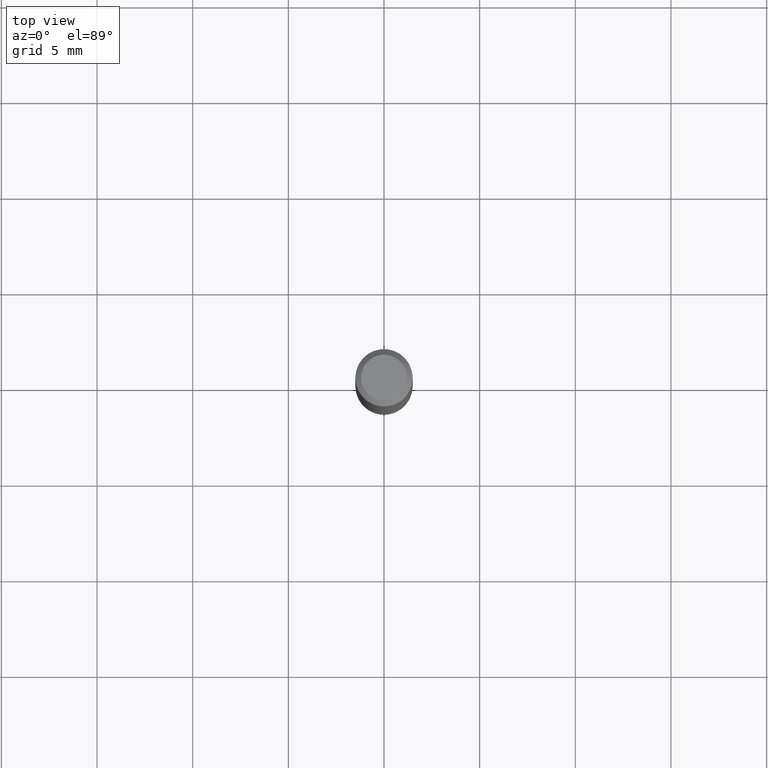
[diagram: clean part render]
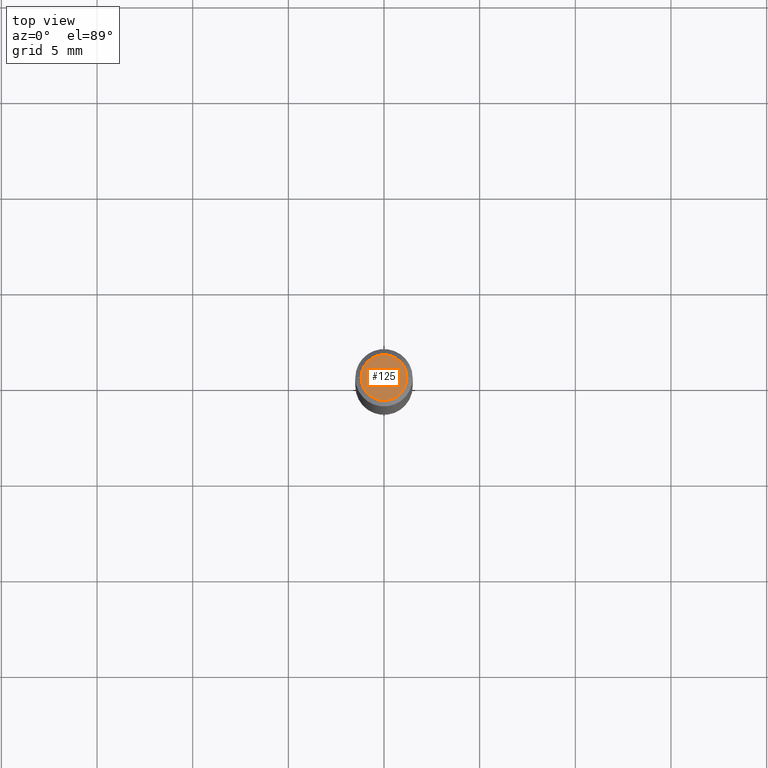
[diagram: same view with one face highlighted and labeled with its STEP entity id]
A machine part, top view. The second image highlights one B-rep face of the part: STEP entity #125.
In plain terms, the highlighted planar face has unit normal (0, -0, -1).
Its self-contained STEP definition (entity closure, byte-faithful):
#9 = CARTESIAN_POINT ( 'NONE',  ( 8.265746106709734507E-48, -1.180129479067563789E-33, -3.380025165646692144E-19 ) ) ;
#13 = AXIS2_PLACEMENT_3D ( 'NONE', #229, #138, #28 ) ;
#26 = DIRECTION ( 'NONE',  ( -1.000000000000000000, 6.982962677686265922E-15, -4.876176775795935793E-29 ) ) ;
#28 = DIRECTION ( 'NONE',  ( 1.000000000000000000, -6.982962677686266711E-15, 4.876185090822587894E-29 ) ) ;
#56 = CIRCLE ( 'NONE', #13, 0.04724000000000000421 ) ;
#62 = CARTESIAN_POINT ( 'NONE',  ( 4.132873053354867254E-48, -5.900647395337818946E-34, -1.690012582823346072E-19 ) ) ;
#78 = EDGE_CURVE ( 'NONE', #439, #80, #56, .T. ) ;
#80 = VERTEX_POINT ( 'NONE', #411 ) ;
#125 = ADVANCED_FACE ( 'NONE', ( #484 ), #335, .F. ) ;
#129 = CIRCLE ( 'NONE', #225, 0.04724000000000000421 ) ;
#138 = DIRECTION ( 'NONE',  ( -2.445468806185136597E-29, 3.491481338843145583E-15, 1.000000000000000000 ) ) ;
#170 = CARTESIAN_POINT ( 'NONE',  ( -0.04724000000000000421, 3.504923541997677355E-16, -3.380025165670481712E-19 ) ) ;
#225 = AXIS2_PLACEMENT_3D ( 'NONE', #9, #426, #318 ) ;
#229 = CARTESIAN_POINT ( 'NONE',  ( 8.265746106709734507E-48, -1.180129479067563789E-33, -3.380025165646692144E-19 ) ) ;
#256 = ORIENTED_EDGE ( 'NONE', *, *, #78, .T. ) ;
#260 = EDGE_CURVE ( 'NONE', #80, #439, #129, .T. ) ;
#270 = DIRECTION ( 'NONE',  ( 2.438088387897960049E-29, -3.491481338843145188E-15, -1.000000000000000000 ) ) ;
#318 = DIRECTION ( 'NONE',  ( 1.000000000000000000, -6.982962677686266711E-15, 4.876185090822587894E-29 ) ) ;
#324 = EDGE_LOOP ( 'NONE', ( #256, #438 ) ) ;
#335 = PLANE ( 'NONE',  #406 ) ;
#406 = AXIS2_PLACEMENT_3D ( 'NONE', #62, #270, #26 ) ;
#411 = CARTESIAN_POINT ( 'NONE',  ( 0.04724000000000000421, -3.852183633974369345E-16, -3.380025165621689721E-19 ) ) ;
#426 = DIRECTION ( 'NONE',  ( -2.445468806185136597E-29, 3.491481338843145583E-15, 1.000000000000000000 ) ) ;
#438 = ORIENTED_EDGE ( 'NONE', *, *, #260, .T. ) ;
#439 = VERTEX_POINT ( 'NONE', #170 ) ;
#484 = FACE_OUTER_BOUND ( 'NONE', #324, .T. ) ;